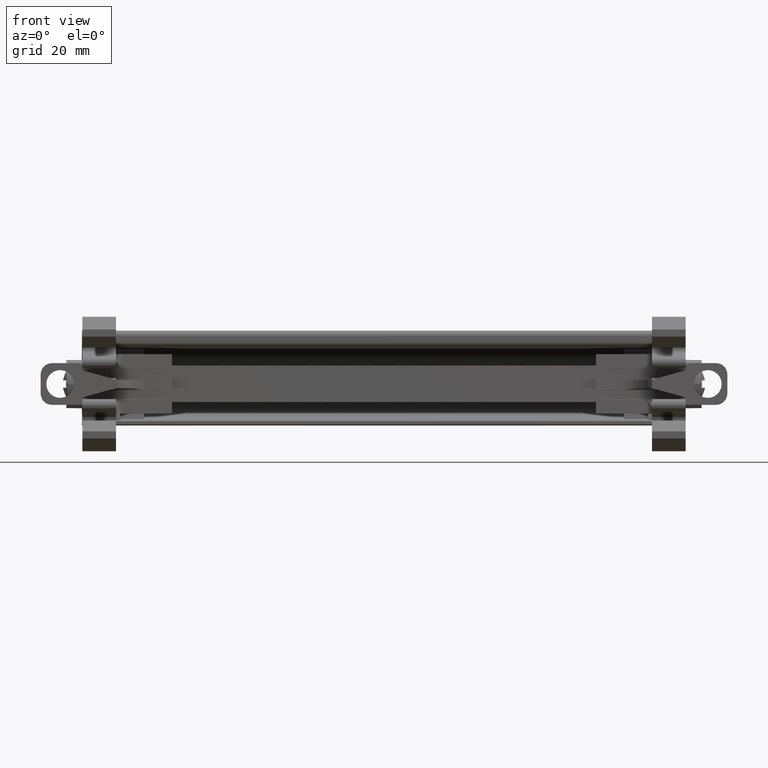
[diagram: clean part render]
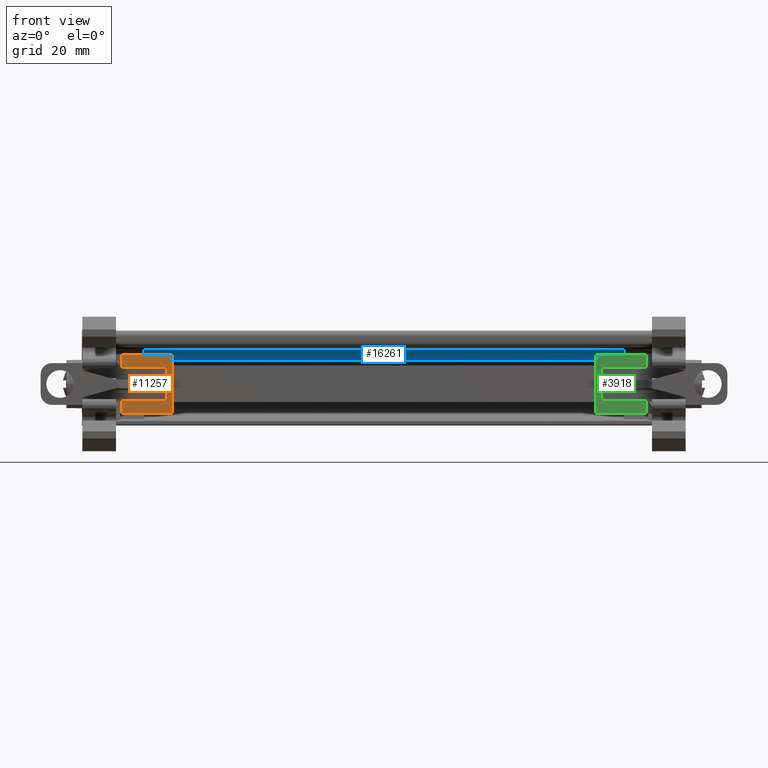
[diagram: same view with three faces highlighted in distinct colors, each labeled with its STEP entity id]
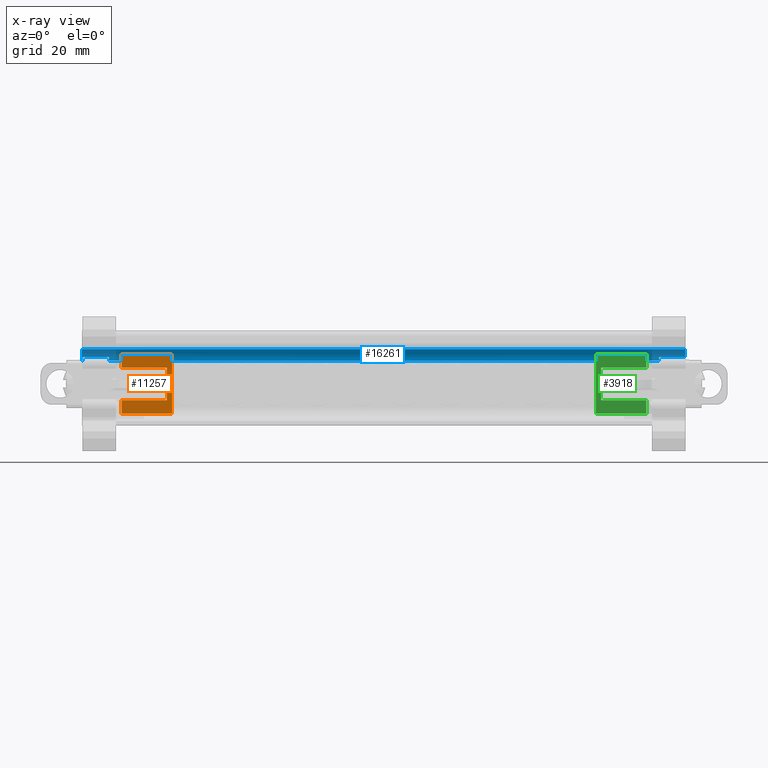
[diagram: x-ray of the same camera — body ghosted, the three highlighted faces saturated]
A machine part, front view with three faces highlighted in distinct colors.
The next image is the same camera in x-ray (body ghosted, the three faces saturated) — at least one of them is partly hidden behind the body in this view.
Their STEP definitions:

[orange] entity #11257 — the highlighted planar face has unit normal (0, -1, -0).
#842 = LINE ( 'NONE', #899, #33074 ) ;
#899 = CARTESIAN_POINT ( 'NONE',  ( -68.19539649368670100, -47.31558989761649800, 94.90236202366440900 ) ) ;
#900 = DIRECTION ( 'NONE',  ( 1.000000000000000000, 2.223766850332524900E-014, 2.589419078426960400E-015 ) ) ;
#944 = LINE ( 'NONE', #945, #33069 ) ;
#945 = CARTESIAN_POINT ( 'NONE',  ( -67.27539649368660000, -47.31558989761750000, 90.73144221564119500 ) ) ;
#953 = DIRECTION ( 'NONE',  ( -2.974897449744215400E-015, -1.120879437837964100E-029, 1.000000000000000000 ) ) ;
#1094 = CARTESIAN_POINT ( 'NONE',  ( -72.23539649368659400, -47.31558989761799700, 94.90236202366931200 ) ) ;
#1171 = CARTESIAN_POINT ( 'NONE',  ( -68.19539649368670100, -47.31558989761830200, 96.76944204099019900 ) ) ;
#1173 = CARTESIAN_POINT ( 'NONE',  ( -68.19539649368670100, -47.31558989142450100, 94.90236200118549400 ) ) ;
#1187 = CARTESIAN_POINT ( 'NONE',  ( -76.26739649368660400, -47.31558989761790500, 93.13187154534260500 ) ) ;
#1197 = CARTESIAN_POINT ( 'NONE',  ( -68.19539649368670100, -47.31558989436069900, 93.13187156615310900 ) ) ;
#1221 = CARTESIAN_POINT ( 'NONE',  ( -67.27539649368660000, -47.31558989761750000, 101.3154422156382000 ) ) ;
#1263 = CARTESIAN_POINT ( 'NONE',  ( -76.26739649368660400, -47.31558989761780500, 98.90701242942689900 ) ) ;
#1330 = CARTESIAN_POINT ( 'NONE',  ( -68.19539649368670100, -47.31558989436150100, 98.90701240862179600 ) ) ;
#1342 = CARTESIAN_POINT ( 'NONE',  ( -67.27539649368660000, -47.31558989761750000, 90.73144221564119500 ) ) ;
#1647 = VERTEX_POINT ( 'NONE', #28042 ) ;
#1764 = VERTEX_POINT ( 'NONE', #2538 ) ;
#1776 = VERTEX_POINT ( 'NONE', #31667 ) ;
#2538 = CARTESIAN_POINT ( 'NONE',  ( -76.26739649368660400, -47.31558989761750000, 101.3154422156383800 ) ) ;
#2908 = EDGE_LOOP ( 'NONE', ( #13432, #13446, #13453, #13456, #13527, #13524, #13516, #13530, #13495, #13484, #13491, #13564 ) ) ;
#3099 = EDGE_CURVE ( 'NONE', #1647, #7235, #31511, .T. ) ;
#3466 = EDGE_CURVE ( 'NONE', #1776, #7238, #7774, .T. ) ;
#3483 = EDGE_CURVE ( 'NONE', #7190, #1647, #7804, .T. ) ;
#3512 = EDGE_CURVE ( 'NONE', #1764, #7310, #7892, .T. ) ;
#3562 = EDGE_CURVE ( 'NONE', #7325, #1764, #8038, .T. ) ;
#3615 = EDGE_CURVE ( 'NONE', #7340, #1776, #8194, .T. ) ;
#6694 = VECTOR ( 'NONE', #31549, 1000.000000000000000 ) ;
#6802 = VECTOR ( 'NONE', #8211, 1000.000000000000000 ) ;
#7031 = EDGE_CURVE ( 'NONE', #7310, #7333, #22167, .T. ) ;
#7065 = EDGE_CURVE ( 'NONE', #7333, #7235, #22335, .T. ) ;
#7101 = EDGE_CURVE ( 'NONE', #7190, #7260, #842, .T. ) ;
#7122 = EDGE_CURVE ( 'NONE', #7340, #7325, #944, .T. ) ;
#7190 = VERTEX_POINT ( 'NONE', #1094 ) ;
#7235 = VERTEX_POINT ( 'NONE', #1171 ) ;
#7238 = VERTEX_POINT ( 'NONE', #1187 ) ;
#7260 = VERTEX_POINT ( 'NONE', #1173 ) ;
#7267 = VERTEX_POINT ( 'NONE', #1197 ) ;
#7310 = VERTEX_POINT ( 'NONE', #1263 ) ;
#7325 = VERTEX_POINT ( 'NONE', #1221 ) ;
#7333 = VERTEX_POINT ( 'NONE', #1330 ) ;
#7340 = VERTEX_POINT ( 'NONE', #1342 ) ;
#7745 = DIRECTION ( 'NONE',  ( -2.589419078423880300E-015, -1.387778780781406000E-013, 1.000000000000000000 ) ) ;
#7759 = CARTESIAN_POINT ( 'NONE',  ( -76.26739649368660400, -47.31558989761750000, 90.63749771212408700 ) ) ;
#7774 = LINE ( 'NONE', #7759, #8760 ) ;
#7804 = LINE ( 'NONE', #7812, #8813 ) ;
#7812 = CARTESIAN_POINT ( 'NONE',  ( -72.23539649368659400, -47.31558989761740000, 90.63749771212408700 ) ) ;
#7826 = DIRECTION ( 'NONE',  ( -2.589419078423880300E-015, -1.387778780781406000E-013, 1.000000000000000000 ) ) ;
#7884 = CARTESIAN_POINT ( 'NONE',  ( -76.26739649368660400, -47.31558989761750000, 101.4093867191550100 ) ) ;
#7892 = LINE ( 'NONE', #7884, #28030 ) ;
#7919 = DIRECTION ( 'NONE',  ( 2.589419078427000300E-015, -1.387778780781406000E-013, -1.000000000000000000 ) ) ;
#8038 = LINE ( 'NONE', #8048, #19357 ) ;
#8048 = CARTESIAN_POINT ( 'NONE',  ( -67.19539649368660200, -47.31558989761740000, 101.3154422156386000 ) ) ;
#8051 = DIRECTION ( 'NONE',  ( -1.000000000000000000, -1.123605221868004000E-014, -2.589419078425440300E-015 ) ) ;
#8194 = LINE ( 'NONE', #8209, #6802 ) ;
#8209 = CARTESIAN_POINT ( 'NONE',  ( -67.19539649368660200, -47.31558989761740000, 90.73144221564079700 ) ) ;
#8211 = DIRECTION ( 'NONE',  ( -1.000000000000000000, -1.123605221868004000E-014, -2.589419078425440300E-015 ) ) ;
#8760 = VECTOR ( 'NONE', #7745, 1000.000000000000000 ) ;
#8813 = VECTOR ( 'NONE', #7826, 1000.000000000000000 ) ;
#10250 = PLANE ( 'NONE',  #13053 ) ;
#10260 = CARTESIAN_POINT ( 'NONE',  ( -84.33139649368659700, -47.31558989761760600, 90.63749771212408700 ) ) ;
#10281 = FACE_OUTER_BOUND ( 'NONE', #2908, .T. ) ;
#10292 = DIRECTION ( 'NONE',  ( 1.123605221868040000E-014, -1.000000000000000000, -1.387778780781406000E-013 ) ) ;
#10294 = DIRECTION ( 'NONE',  ( 1.000000000000000000, 1.123605221868004000E-014, 2.589419078425440300E-015 ) ) ;
#11257 = ADVANCED_FACE ( 'NONE', ( #10281 ), #10250, .T. ) ;
#13053 = AXIS2_PLACEMENT_3D ( 'NONE', #10260, #10292, #10294 ) ;
#13432 = ORIENTED_EDGE ( 'NONE', *, *, #7101, .T. ) ;
#13446 = ORIENTED_EDGE ( 'NONE', *, *, #16184, .F. ) ;
#13453 = ORIENTED_EDGE ( 'NONE', *, *, #16973, .T. ) ;
#13456 = ORIENTED_EDGE ( 'NONE', *, *, #3466, .F. ) ;
#13484 = ORIENTED_EDGE ( 'NONE', *, *, #7065, .T. ) ;
#13491 = ORIENTED_EDGE ( 'NONE', *, *, #3099, .F. ) ;
#13495 = ORIENTED_EDGE ( 'NONE', *, *, #7031, .T. ) ;
#13516 = ORIENTED_EDGE ( 'NONE', *, *, #3562, .T. ) ;
#13524 = ORIENTED_EDGE ( 'NONE', *, *, #7122, .T. ) ;
#13527 = ORIENTED_EDGE ( 'NONE', *, *, #3615, .F. ) ;
#13530 = ORIENTED_EDGE ( 'NONE', *, *, #3512, .T. ) ;
#13564 = ORIENTED_EDGE ( 'NONE', *, *, #3483, .F. ) ;
#16184 = EDGE_CURVE ( 'NONE', #7267, #7260, #22718, .T. ) ;
#16973 = EDGE_CURVE ( 'NONE', #7267, #7238, #29229, .T. ) ;
#19357 = VECTOR ( 'NONE', #8051, 1000.000000000000000 ) ;
#22137 = DIRECTION ( 'NONE',  ( 1.000000000000000000, 2.223766850332524900E-014, 2.589419078426960400E-015 ) ) ;
#22164 = CARTESIAN_POINT ( 'NONE',  ( -68.19539649368670100, -47.31558989761850100, 98.90701242943289600 ) ) ;
#22167 = LINE ( 'NONE', #22164, #32946 ) ;
#22324 = CARTESIAN_POINT ( 'NONE',  ( -68.19539649368660200, -47.31558989761740000, 90.63749771212420100 ) ) ;
#22335 = LINE ( 'NONE', #22324, #33015 ) ;
#22336 = DIRECTION ( 'NONE',  ( 4.941704111846911000E-015, 1.387778780781406000E-013, -1.000000000000000000 ) ) ;
#22718 = LINE ( 'NONE', #22798, #23499 ) ;
#22789 = DIRECTION ( 'NONE',  ( -2.589419078423875200E-015, -1.387778780781406000E-013, 1.000000000000000000 ) ) ;
#22798 = CARTESIAN_POINT ( 'NONE',  ( -68.19539649368670100, -47.31558989761740000, 90.63749771212408700 ) ) ;
#23499 = VECTOR ( 'NONE', #22789, 1000.000000000000000 ) ;
#24135 = VECTOR ( 'NONE', #27102, 1000.000000000000000 ) ;
#27082 = CARTESIAN_POINT ( 'NONE',  ( -68.19539649368670100, -47.31558989761769900, 93.13187154534210800 ) ) ;
#27102 = DIRECTION ( 'NONE',  ( -1.000000000000000000, -2.223766850332524900E-014, -2.589419078426960400E-015 ) ) ;
#28030 = VECTOR ( 'NONE', #7919, 1000.000000000000000 ) ;
#28042 = CARTESIAN_POINT ( 'NONE',  ( -72.23539649368659400, -47.31558989761830200, 96.76944204099010000 ) ) ;
#29229 = LINE ( 'NONE', #27082, #24135 ) ;
#31511 = LINE ( 'NONE', #31513, #6694 ) ;
#31513 = CARTESIAN_POINT ( 'NONE',  ( -83.27539649368630100, -47.31558989761840200, 96.76944204099010000 ) ) ;
#31549 = DIRECTION ( 'NONE',  ( 1.000000000000000000, 1.123605221868004000E-014, 2.537798099621990400E-015 ) ) ;
#31667 = CARTESIAN_POINT ( 'NONE',  ( -76.26739649368660400, -47.31558989761750000, 90.73144221564069800 ) ) ;
#32946 = VECTOR ( 'NONE', #22137, 1000.000000000000000 ) ;
#33015 = VECTOR ( 'NONE', #22336, 1000.000000000000000 ) ;
#33069 = VECTOR ( 'NONE', #953, 1000.000000000000000 ) ;
#33074 = VECTOR ( 'NONE', #900, 1000.000000000000000 ) ;

[blue] entity #16261 — the highlighted cylindrical surface (edge-blend (fillet) strip) has radius 1.9992 mm, axis along (-1, -0, 0).
#4747 = EDGE_LOOP ( 'NONE', ( #28995, #28929, #28923, #28936, #29000, #28946, #28918, #28975, #28950, #28939 ) ) ;
#11813 = EDGE_CURVE ( 'NONE', #29505, #29545, #12209, .T. ) ;
#11893 = EDGE_CURVE ( 'NONE', #29322, #29556, #12279, .T. ) ;
#11903 = EDGE_CURVE ( 'NONE', #29527, #29467, #12224, .T. ) ;
#11910 = EDGE_CURVE ( 'NONE', #29565, #29297, #12271, .T. ) ;
#11914 = EDGE_CURVE ( 'NONE', #29505, #29527, #17020, .T. ) ;
#11930 = EDGE_CURVE ( 'NONE', #29545, #29565, #17058, .T. ) ;
#11949 = EDGE_CURVE ( 'NONE', #29556, #29598, #17030, .T. ) ;
#11968 = EDGE_CURVE ( 'NONE', #29598, #29402, #12252, .T. ) ;
#12200 = AXIS2_PLACEMENT_3D ( 'NONE', #17868, #17885, #17846 ) ;
#12209 = CIRCLE ( 'NONE', #12200, 1.999242424225201800 ) ;
#12224 = CIRCLE ( 'NONE', #12248, 1.999242424225201800 ) ;
#12225 = VECTOR ( 'NONE', #17056, 1000.000000000000000 ) ;
#12232 = VECTOR ( 'NONE', #17014, 1000.000000000000000 ) ;
#12238 = AXIS2_PLACEMENT_3D ( 'NONE', #17066, #17089, #17067 ) ;
#12245 = AXIS2_PLACEMENT_3D ( 'NONE', #18035, #18056, #18006 ) ;
#12248 = AXIS2_PLACEMENT_3D ( 'NONE', #17024, #17057, #17054 ) ;
#12252 = CIRCLE ( 'NONE', #12238, 1.999242424225198500 ) ;
#12262 = VECTOR ( 'NONE', #17090, 1000.000000000000000 ) ;
#12271 = CIRCLE ( 'NONE', #12281, 1.999242424225201800 ) ;
#12279 = CIRCLE ( 'NONE', #12245, 1.999242424225201800 ) ;
#12281 = AXIS2_PLACEMENT_3D ( 'NONE', #17027, #17045, #17036 ) ;
#12827 = VECTOR ( 'NONE', #19938, 1000.000000000000000 ) ;
#12840 = VECTOR ( 'NONE', #20053, 1000.000000000000000 ) ;
#15367 = EDGE_CURVE ( 'NONE', #29297, #29322, #19956, .T. ) ;
#15444 = EDGE_CURVE ( 'NONE', #29402, #29467, #20021, .T. ) ;
#16261 = ADVANCED_FACE ( 'NONE', ( #25150 ), #25148, .F. ) ;
#17014 = DIRECTION ( 'NONE',  ( -1.000000000000000000, -1.123605221867985000E-014, 1.149507329944757500E-014 ) ) ;
#17016 = CARTESIAN_POINT ( 'NONE',  ( 22.73827774791260100, -22.88733447479518900, 100.8114422156386800 ) ) ;
#17020 = LINE ( 'NONE', #17035, #12225 ) ;
#17024 = CARTESIAN_POINT ( 'NONE',  ( -83.37151391784036000, -24.79683233985299000, 100.2191684831770600 ) ) ;
#17027 = CARTESIAN_POINT ( 'NONE',  ( 19.60883548052633400, -24.79683233985220500, 100.2191684831765300 ) ) ;
#17030 = LINE ( 'NONE', #17031, #12262 ) ;
#17031 = CARTESIAN_POINT ( 'NONE',  ( 22.73827774791260100, -22.88733447479518900, 100.8114422156386800 ) ) ;
#17035 = CARTESIAN_POINT ( 'NONE',  ( 22.73827774791263700, -24.76194074849122700, 102.2181064130975000 ) ) ;
#17036 = DIRECTION ( 'NONE',  ( 1.041228490326234700E-014, -1.000000000000000000, 0.0000000000000000000 ) ) ;
#17045 = DIRECTION ( 'NONE',  ( -1.000000000000000000, -1.100161628464488100E-014, -2.352285033424550400E-015 ) ) ;
#17054 = DIRECTION ( 'NONE',  ( -1.388304653768312900E-014, 1.000000000000000000, 0.0000000000000000000 ) ) ;
#17056 = DIRECTION ( 'NONE',  ( -1.000000000000000000, -1.123605221867985000E-014, 1.149507329944757500E-014 ) ) ;
#17057 = DIRECTION ( 'NONE',  ( -1.000000000000000000, -1.123605221868004800E-014, -2.470852055925285700E-015 ) ) ;
#17058 = LINE ( 'NONE', #17016, #12232 ) ;
#17066 = CARTESIAN_POINT ( 'NONE',  ( -83.27539649368650000, -24.79683233985336300, 100.2191684831777100 ) ) ;
#17067 = DIRECTION ( 'NONE',  ( 1.388304653768315200E-014, -1.000000000000000000, 0.0000000000000000000 ) ) ;
#17089 = DIRECTION ( 'NONE',  ( -1.000000000000000000, -1.111883425166246100E-014, -2.470852055924995400E-015 ) ) ;
#17090 = DIRECTION ( 'NONE',  ( -1.000000000000000000, -1.123605221867985000E-014, 1.149507329944757500E-014 ) ) ;
#17846 = DIRECTION ( 'NONE',  ( -1.041228490326234700E-014, 1.000000000000000000, 6.941523268841564300E-015 ) ) ;
#17868 = CARTESIAN_POINT ( 'NONE',  ( 24.22822092972951700, -24.79683233985217300, 100.2191684831765000 ) ) ;
#17885 = DIRECTION ( 'NONE',  ( -1.000000000000000000, -1.123605221867985000E-014, 1.149507329944757500E-014 ) ) ;
#18006 = DIRECTION ( 'NONE',  ( -1.388304653768312900E-014, 1.000000000000000000, 0.0000000000000000000 ) ) ;
#18035 = CARTESIAN_POINT ( 'NONE',  ( -78.55962846789933000, -24.79683233985331000, 100.2191684831776700 ) ) ;
#18056 = DIRECTION ( 'NONE',  ( 1.000000000000000000, 1.123605221868004000E-014, 2.589419078425440300E-015 ) ) ;
#19938 = DIRECTION ( 'NONE',  ( -1.000000000000000000, -1.123605221867985000E-014, 1.149507329944757500E-014 ) ) ;
#19956 = LINE ( 'NONE', #19964, #12827 ) ;
#19964 = CARTESIAN_POINT ( 'NONE',  ( 22.73827774791263700, -22.79758991562697200, 100.2191684831696100 ) ) ;
#20021 = LINE ( 'NONE', #20035, #12840 ) ;
#20035 = CARTESIAN_POINT ( 'NONE',  ( 22.73827774791263700, -22.79758991562697200, 100.2191684831696100 ) ) ;
#20053 = DIRECTION ( 'NONE',  ( -1.000000000000000000, -1.123605221867985000E-014, 1.149507329944757500E-014 ) ) ;
#23558 = AXIS2_PLACEMENT_3D ( 'NONE', #25117, #25154, #25149 ) ;
#25117 = CARTESIAN_POINT ( 'NONE',  ( 22.73827774791262300, -24.79683233985217300, 100.2191684831765000 ) ) ;
#25148 = CYLINDRICAL_SURFACE ( 'NONE', #23558, 1.999242424225194900 ) ;
#25149 = DIRECTION ( 'NONE',  ( -1.214766572047278000E-014, -1.735380817210397200E-014, -1.000000000000000000 ) ) ;
#25150 = FACE_OUTER_BOUND ( 'NONE', #4747, .T. ) ;
#25154 = DIRECTION ( 'NONE',  ( -1.000000000000000000, -1.123605221867985000E-014, 1.149507329944757500E-014 ) ) ;
#28918 = ORIENTED_EDGE ( 'NONE', *, *, #11903, .T. ) ;
#28923 = ORIENTED_EDGE ( 'NONE', *, *, #11910, .F. ) ;
#28929 = ORIENTED_EDGE ( 'NONE', *, *, #15367, .F. ) ;
#28936 = ORIENTED_EDGE ( 'NONE', *, *, #11930, .F. ) ;
#28939 = ORIENTED_EDGE ( 'NONE', *, *, #11949, .F. ) ;
#28946 = ORIENTED_EDGE ( 'NONE', *, *, #11914, .T. ) ;
#28950 = ORIENTED_EDGE ( 'NONE', *, *, #11968, .F. ) ;
#28975 = ORIENTED_EDGE ( 'NONE', *, *, #15444, .F. ) ;
#28995 = ORIENTED_EDGE ( 'NONE', *, *, #11893, .F. ) ;
#29000 = ORIENTED_EDGE ( 'NONE', *, *, #11813, .F. ) ;
#29297 = VERTEX_POINT ( 'NONE', #30269 ) ;
#29322 = VERTEX_POINT ( 'NONE', #30222 ) ;
#29402 = VERTEX_POINT ( 'NONE', #30324 ) ;
#29467 = VERTEX_POINT ( 'NONE', #30367 ) ;
#29505 = VERTEX_POINT ( 'NONE', #30384 ) ;
#29527 = VERTEX_POINT ( 'NONE', #30361 ) ;
#29545 = VERTEX_POINT ( 'NONE', #30437 ) ;
#29556 = VERTEX_POINT ( 'NONE', #30435 ) ;
#29565 = VERTEX_POINT ( 'NONE', #30455 ) ;
#29598 = VERTEX_POINT ( 'NONE', #30549 ) ;
#30222 = CARTESIAN_POINT ( 'NONE',  ( -78.55962846789920200, -22.79758991562915300, 100.2191684831776700 ) ) ;
#30269 = CARTESIAN_POINT ( 'NONE',  ( 19.60883548052631300, -22.79758991562805900, 100.2191684831765300 ) ) ;
#30324 = CARTESIAN_POINT ( 'NONE',  ( -83.27539649368652900, -22.79758991562891900, 100.2191684831777000 ) ) ;
#30361 = CARTESIAN_POINT ( 'NONE',  ( -83.37151391784036000, -24.76194074849204800, 102.2181064130980600 ) ) ;
#30367 = CARTESIAN_POINT ( 'NONE',  ( -83.37151391784036000, -22.79758991562778900, 100.2191684831701700 ) ) ;
#30384 = CARTESIAN_POINT ( 'NONE',  ( 24.22822092972962000, -24.76194074849122700, 102.2181064130975000 ) ) ;
#30435 = CARTESIAN_POINT ( 'NONE',  ( -78.55962846789921600, -22.88733447479635100, 100.8114422156383900 ) ) ;
#30437 = CARTESIAN_POINT ( 'NONE',  ( 24.22822092972950300, -22.88733447479518900, 100.8114422156386800 ) ) ;
#30455 = CARTESIAN_POINT ( 'NONE',  ( 19.60883548052631300, -22.88733447479520300, 100.8114422156386500 ) ) ;
#30549 = CARTESIAN_POINT ( 'NONE',  ( -83.27539649368652900, -22.88733447479591400, 100.8114422156383900 ) ) ;

[green] entity #3918 — the highlighted planar face has unit normal (0, -1, -0).
#3918 = ADVANCED_FACE ( 'NONE', ( #19151 ), #19152, .T. ) ;
#4161 = ORIENTED_EDGE ( 'NONE', *, *, #18050, .F. ) ;
#4167 = ORIENTED_EDGE ( 'NONE', *, *, #18086, .T. ) ;
#4169 = ORIENTED_EDGE ( 'NONE', *, *, #18099, .F. ) ;
#4187 = ORIENTED_EDGE ( 'NONE', *, *, #18072, .F. ) ;
#4203 = ORIENTED_EDGE ( 'NONE', *, *, #17894, .T. ) ;
#4220 = ORIENTED_EDGE ( 'NONE', *, *, #18094, .F. ) ;
#4225 = ORIENTED_EDGE ( 'NONE', *, *, #17983, .F. ) ;
#4253 = ORIENTED_EDGE ( 'NONE', *, *, #18047, .F. ) ;
#4257 = ORIENTED_EDGE ( 'NONE', *, *, #17989, .F. ) ;
#4258 = ORIENTED_EDGE ( 'NONE', *, *, #18082, .T. ) ;
#4265 = ORIENTED_EDGE ( 'NONE', *, *, #17897, .T. ) ;
#4273 = ORIENTED_EDGE ( 'NONE', *, *, #17911, .T. ) ;
#14533 = EDGE_LOOP ( 'NONE', ( #4187, #4203, #4167, #4220, #4161, #4169, #4257, #4225, #4258, #4265, #4253, #4273 ) ) ;
#17894 = EDGE_CURVE ( 'NONE', #24460, #24454, #27174, .T. ) ;
#17897 = EDGE_CURVE ( 'NONE', #24383, #24465, #27171, .T. ) ;
#17911 = EDGE_CURVE ( 'NONE', #24478, #24400, #27169, .T. ) ;
#17983 = EDGE_CURVE ( 'NONE', #24442, #24379, #27336, .T. ) ;
#17989 = EDGE_CURVE ( 'NONE', #24379, #24427, #27358, .T. ) ;
#18047 = EDGE_CURVE ( 'NONE', #24478, #24465, #27480, .T. ) ;
#18050 = EDGE_CURVE ( 'NONE', #24476, #24475, #30702, .T. ) ;
#18072 = EDGE_CURVE ( 'NONE', #24460, #24400, #30691, .T. ) ;
#18082 = EDGE_CURVE ( 'NONE', #24442, #24383, #30759, .T. ) ;
#18086 = EDGE_CURVE ( 'NONE', #24454, #24360, #30748, .T. ) ;
#18094 = EDGE_CURVE ( 'NONE', #24475, #24360, #30768, .T. ) ;
#18099 = EDGE_CURVE ( 'NONE', #24427, #24476, #30764, .T. ) ;
#19149 = CARTESIAN_POINT ( 'NONE',  ( 25.38060350631416600, -47.31558989761638400, 90.63749771212437200 ) ) ;
#19151 = FACE_OUTER_BOUND ( 'NONE', #14533, .T. ) ;
#19152 = PLANE ( 'NONE',  #32684 ) ;
#19153 = DIRECTION ( 'NONE',  ( 1.100161628464520700E-014, -1.000000000000000000, -1.387778780781406000E-013 ) ) ;
#19154 = DIRECTION ( 'NONE',  ( -1.000000000000000000, -1.100161628464488100E-014, -2.352285033424550400E-015 ) ) ;
#24111 = VECTOR ( 'NONE', #27155, 1000.000000000000000 ) ;
#24138 = VECTOR ( 'NONE', #27163, 1000.000000000000000 ) ;
#24147 = VECTOR ( 'NONE', #27203, 1000.000000000000000 ) ;
#24173 = VECTOR ( 'NONE', #27298, 1000.000000000000000 ) ;
#24179 = VECTOR ( 'NONE', #27360, 1000.000000000000000 ) ;
#24237 = VECTOR ( 'NONE', #30792, 1000.000000000000000 ) ;
#24240 = VECTOR ( 'NONE', #30698, 1000.000000000000000 ) ;
#24249 = VECTOR ( 'NONE', #30707, 1000.000000000000000 ) ;
#24251 = VECTOR ( 'NONE', #30746, 1000.000000000000000 ) ;
#24277 = VECTOR ( 'NONE', #30754, 1000.000000000000000 ) ;
#24294 = VECTOR ( 'NONE', #28869, 1000.000000000000000 ) ;
#24296 = VECTOR ( 'NONE', #30802, 1000.000000000000000 ) ;
#24360 = VERTEX_POINT ( 'NONE', #29835 ) ;
#24379 = VERTEX_POINT ( 'NONE', #29943 ) ;
#24383 = VERTEX_POINT ( 'NONE', #29892 ) ;
#24400 = VERTEX_POINT ( 'NONE', #29934 ) ;
#24427 = VERTEX_POINT ( 'NONE', #29953 ) ;
#24442 = VERTEX_POINT ( 'NONE', #29902 ) ;
#24454 = VERTEX_POINT ( 'NONE', #29894 ) ;
#24460 = VERTEX_POINT ( 'NONE', #29897 ) ;
#24465 = VERTEX_POINT ( 'NONE', #29898 ) ;
#24475 = VERTEX_POINT ( 'NONE', #29901 ) ;
#24476 = VERTEX_POINT ( 'NONE', #29903 ) ;
#24478 = VERTEX_POINT ( 'NONE', #29905 ) ;
#27155 = DIRECTION ( 'NONE',  ( -2.352285033423024400E-015, -1.387778780781406000E-013, 1.000000000000000000 ) ) ;
#27160 = CARTESIAN_POINT ( 'NONE',  ( 17.31660350631417700, -47.31558989761645500, 90.63749771212432900 ) ) ;
#27163 = DIRECTION ( 'NONE',  ( -2.352285033423024400E-015, -1.387778780781406000E-013, 1.000000000000000000 ) ) ;
#27169 = LINE ( 'NONE', #27177, #24147 ) ;
#27171 = LINE ( 'NONE', #27160, #24138 ) ;
#27174 = LINE ( 'NONE', #27188, #24111 ) ;
#27177 = CARTESIAN_POINT ( 'NONE',  ( 9.244603506314264900, -47.31558989761653300, 90.63749771212428600 ) ) ;
#27188 = CARTESIAN_POINT ( 'NONE',  ( 13.28460350631417000, -47.31558989761645500, 90.63749771212431500 ) ) ;
#27203 = DIRECTION ( 'NONE',  ( -2.352285033423029500E-015, -1.387778780781406000E-013, 1.000000000000000000 ) ) ;
#27298 = DIRECTION ( 'NONE',  ( -1.966806662105775400E-015, 3.363116314379561000E-044, 1.000000000000000000 ) ) ;
#27301 = CARTESIAN_POINT ( 'NONE',  ( 8.244603506314112100, -47.31558989761656200, 101.3154422156388000 ) ) ;
#27304 = CARTESIAN_POINT ( 'NONE',  ( 8.324603506314177900, -47.31558989761665400, 90.73144221564139400 ) ) ;
#27336 = LINE ( 'NONE', #27304, #24173 ) ;
#27358 = LINE ( 'NONE', #27301, #24179 ) ;
#27360 = DIRECTION ( 'NONE',  ( 1.000000000000000000, 1.100161628464488100E-014, 2.352285033424550400E-015 ) ) ;
#27480 = LINE ( 'NONE', #27528, #24294 ) ;
#27528 = CARTESIAN_POINT ( 'NONE',  ( 9.244603506314250700, -47.31558989761683200, 93.13187154534230700 ) ) ;
#28869 = DIRECTION ( 'NONE',  ( 1.000000000000000000, -3.281661365719407800E-028, 2.352285033423030300E-015 ) ) ;
#29835 = CARTESIAN_POINT ( 'NONE',  ( 9.244603506314238200, -47.31558989761743600, 96.76944204099038400 ) ) ;
#29892 = CARTESIAN_POINT ( 'NONE',  ( 17.31660350631417700, -47.31558989761645500, 90.73144221564092500 ) ) ;
#29894 = CARTESIAN_POINT ( 'NONE',  ( 13.28460350631414300, -47.31558989761735000, 96.76944204099031300 ) ) ;
#29897 = CARTESIAN_POINT ( 'NONE',  ( 13.28460350631414300, -47.31558989761704500, 94.90236202366952500 ) ) ;
#29898 = CARTESIAN_POINT ( 'NONE',  ( 17.31660350631416300, -47.31558989761686000, 93.13187154534284700 ) ) ;
#29901 = CARTESIAN_POINT ( 'NONE',  ( 9.244603506314224000, -47.31558989436063500, 98.90701240862198100 ) ) ;
#29902 = CARTESIAN_POINT ( 'NONE',  ( 8.324603506314177900, -47.31558989761665400, 90.73144221564139400 ) ) ;
#29903 = CARTESIAN_POINT ( 'NONE',  ( 17.31660350631413800, -47.31558989761676100, 98.90701242942714100 ) ) ;
#29905 = CARTESIAN_POINT ( 'NONE',  ( 9.244603506314250700, -47.31558989435983200, 93.13187156615329300 ) ) ;
#29934 = CARTESIAN_POINT ( 'NONE',  ( 9.244603506314238200, -47.31558989142363500, 94.90236200118569300 ) ) ;
#29943 = CARTESIAN_POINT ( 'NONE',  ( 8.324603506314122800, -47.31558989761665400, 101.3154422156383800 ) ) ;
#29953 = CARTESIAN_POINT ( 'NONE',  ( 17.31660350631412400, -47.31558989761645500, 101.3154422156386300 ) ) ;
#30675 = CARTESIAN_POINT ( 'NONE',  ( 9.244603506314238200, -47.31558989761563100, 94.90236202366460800 ) ) ;
#30691 = LINE ( 'NONE', #30675, #24240 ) ;
#30698 = DIRECTION ( 'NONE',  ( -1.000000000000000000, 3.281661365719407800E-028, -2.352285033423030300E-015 ) ) ;
#30702 = LINE ( 'NONE', #30703, #24249 ) ;
#30703 = CARTESIAN_POINT ( 'NONE',  ( 9.244603506314224000, -47.31558989761763500, 98.90701242943309500 ) ) ;
#30707 = DIRECTION ( 'NONE',  ( -1.000000000000000000, 3.281661365719407800E-028, -2.352285033423030300E-015 ) ) ;
#30722 = CARTESIAN_POINT ( 'NONE',  ( 8.244603506314167200, -47.31558989761656200, 90.73144221564098200 ) ) ;
#30726 = CARTESIAN_POINT ( 'NONE',  ( 24.32460350631384600, -47.31558989761720100, 96.76944204099037000 ) ) ;
#30746 = DIRECTION ( 'NONE',  ( 1.000000000000000000, 1.100161628464488100E-014, 2.352285033424550400E-015 ) ) ;
#30748 = LINE ( 'NONE', #30726, #24277 ) ;
#30754 = DIRECTION ( 'NONE',  ( -1.000000000000000000, -1.100161628464488100E-014, -2.403906012228000300E-015 ) ) ;
#30759 = LINE ( 'NONE', #30722, #24251 ) ;
#30764 = LINE ( 'NONE', #30794, #24237 ) ;
#30768 = LINE ( 'NONE', #30800, #24296 ) ;
#30792 = DIRECTION ( 'NONE',  ( 2.352285033426076500E-015, -1.387778780781406000E-013, -1.000000000000000000 ) ) ;
#30794 = CARTESIAN_POINT ( 'NONE',  ( 17.31660350631412400, -47.31558989761645500, 101.4093867191552400 ) ) ;
#30800 = CARTESIAN_POINT ( 'NONE',  ( 9.244603506314168900, -47.31558989761653300, 90.63749771212440000 ) ) ;
#30802 = DIRECTION ( 'NONE',  ( -6.310887241768094400E-030, 1.387778780781405500E-013, -1.000000000000000000 ) ) ;
#32684 = AXIS2_PLACEMENT_3D ( 'NONE', #19149, #19153, #19154 ) ;